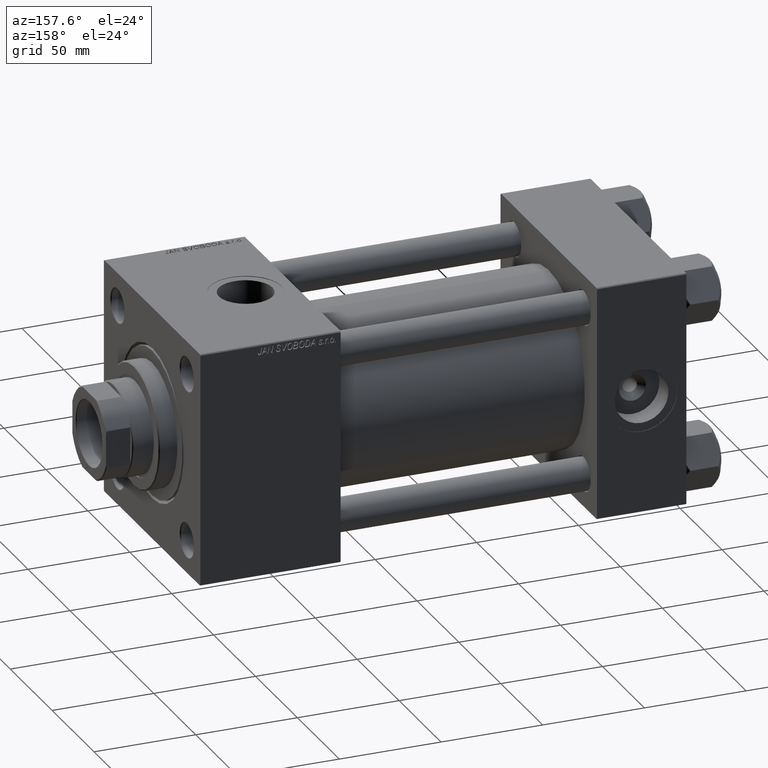
[diagram: clean part render]
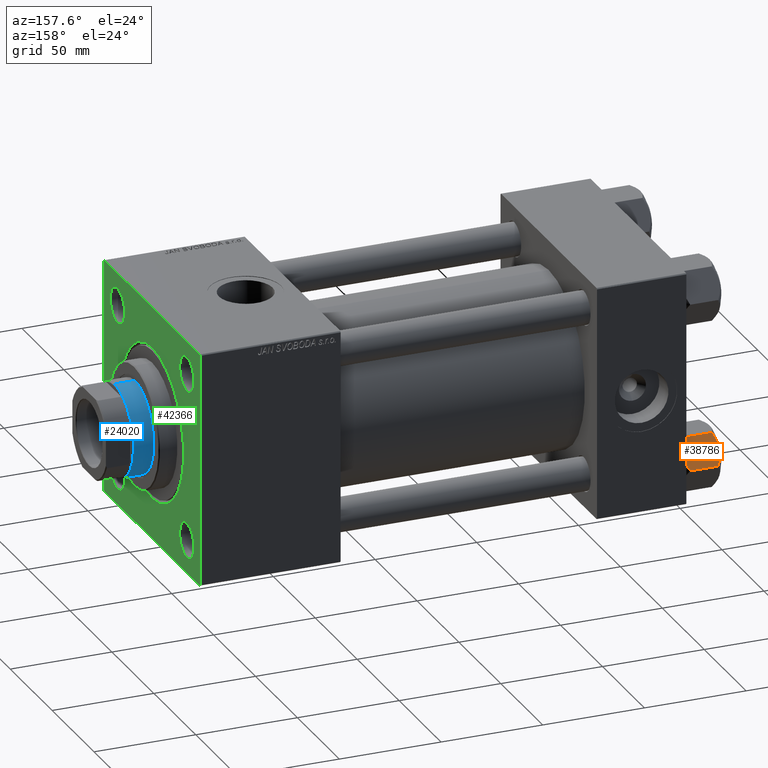
[diagram: same view with three faces highlighted in distinct colors, each labeled with its STEP entity id]
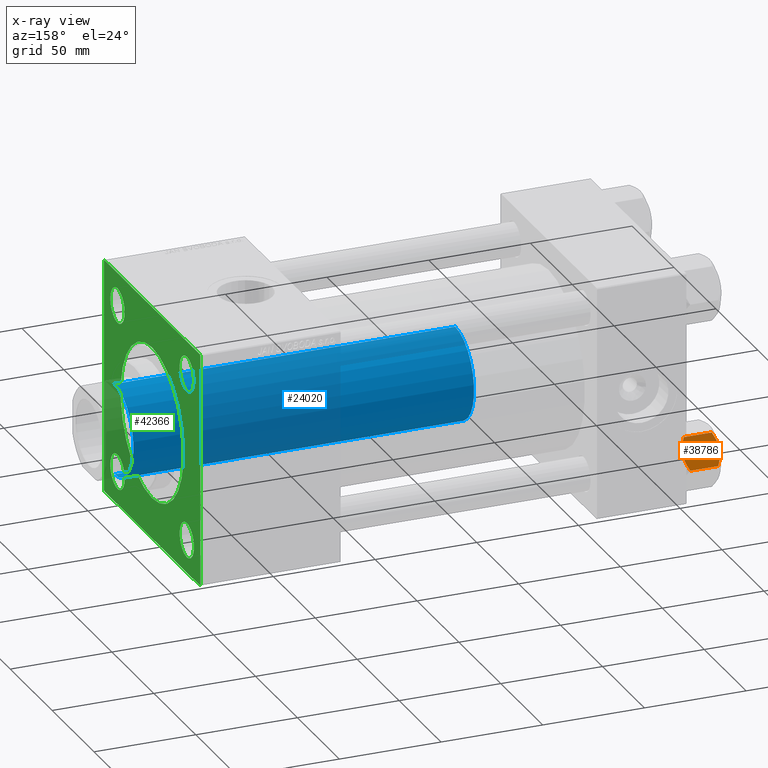
[diagram: x-ray of the same camera — body ghosted, the three highlighted faces saturated]
A machine part, auxiliary view with three faces highlighted in distinct colors.
The next image is the same camera in x-ray (body ghosted, the three faces saturated) — at least one of them is partly hidden behind the body in this view.
Their STEP definitions:

[orange] entity #38786 — the highlighted planar face has unit normal (-0, -0.866, -0.5).
#41 = CARTESIAN_POINT ( 'NONE',  ( 15.52647173767732980, 0.1619957022864996210, -2.000000000000000000 ) ) ;
#497 = CARTESIAN_POINT ( 'NONE',  ( 7.810000000000001386, 13.52731680711293905, -16.00000000000000000 ) ) ;
#923 = FACE_OUTER_BOUND ( 'NONE', #21668, .T. ) ;
#998 = CARTESIAN_POINT ( 'NONE',  ( 15.62000000000000455, -3.536926823623210771E-15, -16.00000000000000000 ) ) ;
#1245 = B_SPLINE_CURVE_WITH_KNOTS ( 'NONE', 3,
 ( #41, #31519, #46658, #12562, #28183, #27422, #4638, #46908 ),
 .UNSPECIFIED., .F., .F.,
 ( 4, 2, 2, 4 ),
 ( 4.472842641998349527E-07, 0.003945636373369321333, 0.005918230917921882620, 0.007890825462474443039 ),
 .UNSPECIFIED. ) ;
#1349 = CARTESIAN_POINT ( 'NONE',  ( 9.114548888011791306, 11.26777185211903110, -17.08577173959729478 ) ) ;
#1800 = DIRECTION ( 'NONE',  ( -0.4999999999999998890, 0.8660254037844387076, 0.000000000000000000 ) ) ;
#2306 = CARTESIAN_POINT ( 'NONE',  ( 7.810000000000001386, 13.52731680711293905, -1.999999999999998224 ) ) ;
#2450 = VECTOR ( 'NONE', #29340, 1000.000000000000000 ) ;
#3002 = ORIENTED_EDGE ( 'NONE', *, *, #30639, .F. ) ;
#3066 = B_SPLINE_CURVE_WITH_KNOTS ( 'NONE', 3,
 ( #47213, #7748, #1349, #35914, #20792, #9531, #28990, #13372 ),
 .UNSPECIFIED., .F., .F.,
 ( 4, 2, 2, 4 ),
 ( 4.472842641823326580E-07, 0.003945636373369297047, 0.005918230917921854864, 0.007890825462474411814 ),
 .UNSPECIFIED. ) ;
#3908 = CARTESIAN_POINT ( 'NONE',  ( 13.02784502466562699, 4.489744118371585380, -17.80281335400753306 ) ) ;
#4638 = CARTESIAN_POINT ( 'NONE',  ( 12.04818928091285812, 6.186557640478061337, 4.387630666777275756E-15 ) ) ;
#5076 = EDGE_CURVE ( 'NONE', #31264, #12380, #3066, .T. ) ;
#5878 = CARTESIAN_POINT ( 'NONE',  ( 11.71500000000000696, 6.763658403556468635, 0.000000000000000000 ) ) ;
#5882 = AXIS2_PLACEMENT_3D ( 'NONE', #8592, #24469, #8339 ) ;
#6131 = CARTESIAN_POINT ( 'NONE',  ( 11.05297796109638142, 7.910314210667880985, 4.223306275009939913E-15 ) ) ;
#6387 = CARTESIAN_POINT ( 'NONE',  ( 8.202637790192646605, 12.84724820552771085, -1.706311779141445495 ) ) ;
#7171 = CARTESIAN_POINT ( 'NONE',  ( 11.71500000000000696, 6.763658403556468635, 0.000000000000000000 ) ) ;
#7489 = CARTESIAN_POINT ( 'NONE',  ( 13.99051971937273997, 2.822342635978011938, -17.26828031537188934 ) ) ;
#7748 = CARTESIAN_POINT ( 'NONE',  ( 8.502393313253762130, 12.32805640973647421, -16.58801072835992585 ) ) ;
#8339 = DIRECTION ( 'NONE',  ( 0.4999999999999998890, -0.8660254037844387076, 0.000000000000000000 ) ) ;
#8592 = CARTESIAN_POINT ( 'NONE',  ( 7.810000000000001386, 13.52731680711293905, -18.00000000000000000 ) ) ;
#8609 = VECTOR ( 'NONE', #46858, 1000.000000000000000 ) ;
#8719 = EDGE_CURVE ( 'NONE', #27029, #19784, #9624, .T. ) ;
#9531 = CARTESIAN_POINT ( 'NONE',  ( 11.04378428799595468, 7.926238119586001218, -17.94910618364698607 ) ) ;
#9624 = LINE ( 'NONE', #44201, #2450 ) ;
#10254 = ORIENTED_EDGE ( 'NONE', *, *, #30222, .F. ) ;
#10481 = CARTESIAN_POINT ( 'NONE',  ( 8.506059550806616798, 12.32170630002230638, -1.434462921875002905 ) ) ;
#10640 = VERTEX_POINT ( 'NONE', #19392 ) ;
#11095 = CARTESIAN_POINT ( 'NONE',  ( 11.71500000000000163, 6.763658403556465082, -18.00000000000000000 ) ) ;
#11343 = CARTESIAN_POINT ( 'NONE',  ( 12.37702203890362540, 5.617002596445055396, -17.99999999999999289 ) ) ;
#11924 = CARTESIAN_POINT ( 'NONE',  ( 7.903528262322677023, 13.36532110482643176, -2.000000000000000000 ) ) ;
#12380 = VERTEX_POINT ( 'NONE', #16820 ) ;
#12562 = CARTESIAN_POINT ( 'NONE',  ( 13.36540581434588049, 3.905071680002321521, -0.3836066851120565335 ) ) ;
#12600 = CARTESIAN_POINT ( 'NONE',  ( 7.810000000000001386, 13.52731680711293905, -1.999999999999998224 ) ) ;
#12602 = B_SPLINE_CURVE_WITH_KNOTS ( 'NONE', 3,
 ( #11095, #11343, #3908, #7489, #15425, #22610, #46444, #23104 ),
 .UNSPECIFIED., .F., .F.,
 ( 4, 2, 2, 4 ),
 ( 0.007890825462474411814, 0.01181022244528552242, 0.01376992093669107686, 0.01572961942809663130 ),
 .UNSPECIFIED. ) ;
#12762 = ORIENTED_EDGE ( 'NONE', *, *, #8719, .F. ) ;
#12772 = LINE ( 'NONE', #497, #42941 ) ;
#12889 = ORIENTED_EDGE ( 'NONE', *, *, #46136, .F. ) ;
#13372 = CARTESIAN_POINT ( 'NONE',  ( 11.71500000000000163, 6.763658403556465082, -18.00000000000000000 ) ) ;
#15425 = CARTESIAN_POINT ( 'NONE',  ( 14.30591678195076177, 2.276058899034901550, -17.05261278537718539 ) ) ;
#15980 = VECTOR ( 'NONE', #1800, 1000.000000000000000 ) ;
#16097 = DIRECTION ( 'NONE',  ( 0.4999999999999998890, -0.8660254037844387076, 0.000000000000000000 ) ) ;
#16820 = CARTESIAN_POINT ( 'NONE',  ( 11.71500000000000163, 6.763658403556465082, -18.00000000000000000 ) ) ;
#17641 = CARTESIAN_POINT ( 'NONE',  ( 9.439480280627261521, 10.70497417113493022, -0.7317196846281139866 ) ) ;
#19392 = CARTESIAN_POINT ( 'NONE',  ( 15.52647173767732980, 0.1619957022864996210, -2.000000000000000000 ) ) ;
#19784 = VERTEX_POINT ( 'NONE', #44995 ) ;
#20017 = CARTESIAN_POINT ( 'NONE',  ( 7.810000000000001386, 13.52731680711293905, -16.00000000000000000 ) ) ;
#20279 = EDGE_CURVE ( 'NONE', #19784, #10640, #40771, .T. ) ;
#20792 = CARTESIAN_POINT ( 'NONE',  ( 10.38662926516872709, 9.064464007571846338, -17.75691532989869970 ) ) ;
#21234 = CARTESIAN_POINT ( 'NONE',  ( 7.810000000000001386, 13.52731680711293905, -16.00000000000000000 ) ) ;
#21668 = EDGE_LOOP ( 'NONE', ( #10254, #42383, #49604, #3002, #48248, #35322, #12762, #37784, #12889, #49838 ) ) ;
#21733 = DIRECTION ( 'NONE',  ( 0.4999999999999998890, -0.8660254037844387076, 0.000000000000000000 ) ) ;
#21993 = CARTESIAN_POINT ( 'NONE',  ( 10.40215497533437272, 9.037572688741351001, -0.1971866459924537240 ) ) ;
#22010 = EDGE_CURVE ( 'NONE', #10640, #27622, #1245, .T. ) ;
#22610 = CARTESIAN_POINT ( 'NONE',  ( 14.92394044919337937, 1.205610507090638217, -16.56553707812499354 ) ) ;
#23021 = LINE ( 'NONE', #47370, #8609 ) ;
#23104 = CARTESIAN_POINT ( 'NONE',  ( 15.52647173767732447, 0.1619957022865091689, -16.00000000000000000 ) ) ;
#23917 = CARTESIAN_POINT ( 'NONE',  ( 15.52647173767732447, 0.1619957022865091689, -16.00000000000000000 ) ) ;
#24469 = DIRECTION ( 'NONE',  ( -0.8660254037844387076, -0.4999999999999998890, 0.000000000000000000 ) ) ;
#25834 = LINE ( 'NONE', #21234, #32503 ) ;
#26878 = EDGE_CURVE ( 'NONE', #41154, #34990, #23021, .T. ) ;
#27029 = VERTEX_POINT ( 'NONE', #998 ) ;
#27192 = VERTEX_POINT ( 'NONE', #23917 ) ;
#27422 = CARTESIAN_POINT ( 'NONE',  ( 12.38621571200405924, 5.601078687526930722, -0.05089381635301206547 ) ) ;
#27622 = VERTEX_POINT ( 'NONE', #7171 ) ;
#27813 = PLANE ( 'NONE',  #5882 ) ;
#28082 = EDGE_CURVE ( 'NONE', #48235, #34990, #33282, .T. ) ;
#28183 = CARTESIAN_POINT ( 'NONE',  ( 13.04337073483128506, 4.462852799541082938, -0.2430846701012950306 ) ) ;
#28990 = CARTESIAN_POINT ( 'NONE',  ( 11.38181071908715225, 7.340759166634867938, -17.99999999999999645 ) ) ;
#29239 = DIRECTION ( 'NONE',  ( -0.4999999999999998890, 0.8660254037844387076, 0.000000000000000000 ) ) ;
#29340 = DIRECTION ( 'NONE',  ( -0.000000000000000000, -0.000000000000000000, 1.000000000000000000 ) ) ;
#29437 = CARTESIAN_POINT ( 'NONE',  ( 9.124083218049243271, 11.25125790807804194, -0.9473872146228123903 ) ) ;
#30222 = EDGE_CURVE ( 'NONE', #41154, #31264, #12772, .T. ) ;
#30639 = EDGE_CURVE ( 'NONE', #27622, #48235, #42751, .T. ) ;
#31264 = VERTEX_POINT ( 'NONE', #47404 ) ;
#31519 = CARTESIAN_POINT ( 'NONE',  ( 14.92760668674625002, 1.199260397376446408, -1.411989271640064825 ) ) ;
#32503 = VECTOR ( 'NONE', #21733, 1000.000000000000000 ) ;
#32716 = CARTESIAN_POINT ( 'NONE',  ( 7.810000000000001386, 13.52731680711293905, -1.999999999999998224 ) ) ;
#33282 = LINE ( 'NONE', #2306, #15980 ) ;
#34990 = VERTEX_POINT ( 'NONE', #32716 ) ;
#35322 = ORIENTED_EDGE ( 'NONE', *, *, #20279, .F. ) ;
#35914 = CARTESIAN_POINT ( 'NONE',  ( 10.06459418565413344, 9.622245127110607754, -17.61639331488794014 ) ) ;
#36815 = EDGE_CURVE ( 'NONE', #27192, #27029, #25834, .T. ) ;
#37784 = ORIENTED_EDGE ( 'NONE', *, *, #36815, .F. ) ;
#38786 = ADVANCED_FACE ( 'NONE', ( #923 ), #27813, .F. ) ;
#40771 = LINE ( 'NONE', #12600, #50083 ) ;
#41154 = VERTEX_POINT ( 'NONE', #20017 ) ;
#42383 = ORIENTED_EDGE ( 'NONE', *, *, #26878, .T. ) ;
#42751 = B_SPLINE_CURVE_WITH_KNOTS ( 'NONE', 3,
 ( #5878, #6131, #21993, #17641, #29437, #10481, #6387, #48915 ),
 .UNSPECIFIED., .F., .F.,
 ( 4, 2, 2, 4 ),
 ( 0.007890825462474443039, 0.01181022244528556059, 0.01376992093669111850, 0.01572961942809667640 ),
 .UNSPECIFIED. ) ;
#42941 = VECTOR ( 'NONE', #16097, 1000.000000000000000 ) ;
#44201 = CARTESIAN_POINT ( 'NONE',  ( 15.62000000000000455, -3.536926823623210771E-15, -18.00000000000000000 ) ) ;
#44995 = CARTESIAN_POINT ( 'NONE',  ( 15.62000000000000455, -3.536926823623210771E-15, -1.999999999999998224 ) ) ;
#46136 = EDGE_CURVE ( 'NONE', #12380, #27192, #12602, .T. ) ;
#46444 = CARTESIAN_POINT ( 'NONE',  ( 15.22736220980735844, 0.6800686015852310806, -16.29368822085855584 ) ) ;
#46658 = CARTESIAN_POINT ( 'NONE',  ( 14.31545111198821552, 2.259544954993890187, -0.9142282604026924497 ) ) ;
#46858 = DIRECTION ( 'NONE',  ( -0.000000000000000000, -0.000000000000000000, 1.000000000000000000 ) ) ;
#46908 = CARTESIAN_POINT ( 'NONE',  ( 11.71500000000000696, 6.763658403556468635, 0.000000000000000000 ) ) ;
#47213 = CARTESIAN_POINT ( 'NONE',  ( 7.903528262322682352, 13.36532110482642111, -16.00000000000000000 ) ) ;
#47370 = CARTESIAN_POINT ( 'NONE',  ( 7.810000000000001386, 13.52731680711293905, -18.00000000000000000 ) ) ;
#47404 = CARTESIAN_POINT ( 'NONE',  ( 7.903528262322682352, 13.36532110482642111, -16.00000000000000000 ) ) ;
#48235 = VERTEX_POINT ( 'NONE', #11924 ) ;
#48248 = ORIENTED_EDGE ( 'NONE', *, *, #22010, .F. ) ;
#48915 = CARTESIAN_POINT ( 'NONE',  ( 7.903528262322677023, 13.36532110482643176, -2.000000000000000000 ) ) ;
#49604 = ORIENTED_EDGE ( 'NONE', *, *, #28082, .F. ) ;
#49838 = ORIENTED_EDGE ( 'NONE', *, *, #5076, .F. ) ;
#50083 = VECTOR ( 'NONE', #29239, 1000.000000000000000 ) ;

[blue] entity #24020 — the highlighted cylindrical surface (partial cylindrical patch) has radius 22.5 mm, axis along (-1, 0, 0).
#30 = CARTESIAN_POINT ( 'NONE',  ( 22.50000000000000355, 2.755455298081544383E-15, 46.00000000000000000 ) ) ;
#1324 = EDGE_CURVE ( 'NONE', #32965, #21248, #26718, .T. ) ;
#1907 = DIRECTION ( 'NONE',  ( 0.000000000000000000, 0.000000000000000000, -1.000000000000000000 ) ) ;
#2006 = ORIENTED_EDGE ( 'NONE', *, *, #47125, .T. ) ;
#2320 = ORIENTED_EDGE ( 'NONE', *, *, #1324, .T. ) ;
#2580 = ORIENTED_EDGE ( 'NONE', *, *, #4147, .T. ) ;
#2909 = CARTESIAN_POINT ( 'NONE',  ( 0.000000000000000000, 0.000000000000000000, 213.5000000000001990 ) ) ;
#3537 = DIRECTION ( 'NONE',  ( 1.000000000000000000, 0.000000000000000000, 0.000000000000000000 ) ) ;
#4030 = FACE_OUTER_BOUND ( 'NONE', #19049, .T. ) ;
#4147 = EDGE_CURVE ( 'NONE', #21383, #44168, #11292, .T. ) ;
#5161 = LINE ( 'NONE', #20768, #22539 ) ;
#5628 = DIRECTION ( 'NONE',  ( -0.000000000000000000, -0.000000000000000000, -1.000000000000000000 ) ) ;
#7104 = CARTESIAN_POINT ( 'NONE',  ( -22.50000000000000355, 0.000000000000000000, 213.5000000000001990 ) ) ;
#11035 = VECTOR ( 'NONE', #5628, 1000.000000000000000 ) ;
#11292 = CIRCLE ( 'NONE', #12096, 22.50000000000000355 ) ;
#12096 = AXIS2_PLACEMENT_3D ( 'NONE', #2909, #1907, #29795 ) ;
#12550 = CARTESIAN_POINT ( 'NONE',  ( 22.50000000000000355, 2.755455298081544383E-15, 213.5000000000001990 ) ) ;
#17709 = AXIS2_PLACEMENT_3D ( 'NONE', #22488, #18643, #3537 ) ;
#18643 = DIRECTION ( 'NONE',  ( 0.000000000000000000, 0.000000000000000000, 1.000000000000000000 ) ) ;
#19049 = EDGE_LOOP ( 'NONE', ( #41466, #2580, #2006, #2320 ) ) ;
#19643 = DIRECTION ( 'NONE',  ( -1.000000000000000000, 0.000000000000000000, 0.000000000000000000 ) ) ;
#20151 = DIRECTION ( 'NONE',  ( -0.000000000000000000, -0.000000000000000000, -1.000000000000000000 ) ) ;
#20768 = CARTESIAN_POINT ( 'NONE',  ( -22.50000000000000355, 0.000000000000000000, 214.0000000000000284 ) ) ;
#21248 = VERTEX_POINT ( 'NONE', #30 ) ;
#21383 = VERTEX_POINT ( 'NONE', #12550 ) ;
#22488 = CARTESIAN_POINT ( 'NONE',  ( 0.000000000000000000, 0.000000000000000000, 46.00000000000000000 ) ) ;
#22539 = VECTOR ( 'NONE', #34768, 1000.000000000000000 ) ;
#24020 = ADVANCED_FACE ( 'NONE', ( #4030 ), #43214, .T. ) ;
#24875 = AXIS2_PLACEMENT_3D ( 'NONE', #42701, #20151, #19643 ) ;
#25342 = LINE ( 'NONE', #36859, #11035 ) ;
#26718 = CIRCLE ( 'NONE', #17709, 22.50000000000000355 ) ;
#29795 = DIRECTION ( 'NONE',  ( 1.000000000000000000, 0.000000000000000000, 0.000000000000000000 ) ) ;
#32965 = VERTEX_POINT ( 'NONE', #46477 ) ;
#34768 = DIRECTION ( 'NONE',  ( -0.000000000000000000, -0.000000000000000000, -1.000000000000000000 ) ) ;
#36859 = CARTESIAN_POINT ( 'NONE',  ( 22.50000000000000355, 2.755455298081544383E-15, 214.0000000000000284 ) ) ;
#41466 = ORIENTED_EDGE ( 'NONE', *, *, #46626, .F. ) ;
#42701 = CARTESIAN_POINT ( 'NONE',  ( 0.000000000000000000, 0.000000000000000000, 214.0000000000000284 ) ) ;
#43214 = CYLINDRICAL_SURFACE ( 'NONE', #24875, 22.50000000000000355 ) ;
#44168 = VERTEX_POINT ( 'NONE', #7104 ) ;
#46477 = CARTESIAN_POINT ( 'NONE',  ( -22.50000000000000355, 0.000000000000000000, 46.00000000000000000 ) ) ;
#46626 = EDGE_CURVE ( 'NONE', #21383, #21248, #25342, .T. ) ;
#47125 = EDGE_CURVE ( 'NONE', #44168, #32965, #5161, .T. ) ;

[green] entity #42366 — the highlighted planar face has unit normal (-1, 0, 0).
#122 = ORIENTED_EDGE ( 'NONE', *, *, #39525, .T. ) ;
#851 = FACE_BOUND ( 'NONE', #49310, .T. ) ;
#1345 = DIRECTION ( 'NONE',  ( -1.000000000000000000, 0.000000000000000000, 0.000000000000000000 ) ) ;
#1509 = EDGE_CURVE ( 'NONE', #41936, #29276, #4673, .T. ) ;
#1628 = EDGE_CURVE ( 'NONE', #39286, #46862, #11350, .T. ) ;
#1669 = EDGE_CURVE ( 'NONE', #15896, #11502, #50458, .T. ) ;
#1739 = CARTESIAN_POINT ( 'NONE',  ( 239.0000000000000000, -41.35000000000000142, -41.34999999999999432 ) ) ;
#2243 = CARTESIAN_POINT ( 'NONE',  ( 239.0000000000000000, -41.35000000000000142, 41.35000000000000853 ) ) ;
#2400 = CIRCLE ( 'NONE', #11392, 8.499999999999923617 ) ;
#3659 = DIRECTION ( 'NONE',  ( 0.000000000000000000, -1.000000000000000000, -1.206764157201257045E-16 ) ) ;
#3789 = AXIS2_PLACEMENT_3D ( 'NONE', #17267, #13441, #32646 ) ;
#3855 = EDGE_CURVE ( 'NONE', #20400, #42304, #25268, .T. ) ;
#4219 = DIRECTION ( 'NONE',  ( -1.000000000000000000, 0.000000000000000000, 0.000000000000000000 ) ) ;
#4673 = CIRCLE ( 'NONE', #37355, 8.500000000000090594 ) ;
#4699 = FACE_BOUND ( 'NONE', #10511, .T. ) ;
#5197 = DIRECTION ( 'NONE',  ( -1.000000000000000000, 0.000000000000000000, 0.000000000000000000 ) ) ;
#5304 = CARTESIAN_POINT ( 'NONE',  ( 239.0000000000000000, 56.99999999999997158, 57.50000000000002132 ) ) ;
#5668 = LINE ( 'NONE', #17421, #30484 ) ;
#5804 = DIRECTION ( 'NONE',  ( 0.000000000000000000, -0.7071067811865672237, 0.7071067811865279218 ) ) ;
#6052 = AXIS2_PLACEMENT_3D ( 'NONE', #23671, #4219, #35457 ) ;
#6642 = EDGE_LOOP ( 'NONE', ( #29902, #26546 ) ) ;
#6861 = AXIS2_PLACEMENT_3D ( 'NONE', #22022, #29965, #14595 ) ;
#7108 = AXIS2_PLACEMENT_3D ( 'NONE', #29443, #41487, #41732 ) ;
#7159 = EDGE_CURVE ( 'NONE', #11502, #15896, #2400, .T. ) ;
#7191 = CARTESIAN_POINT ( 'NONE',  ( 239.0000000000000000, -57.50000000000000711, 57.00000000000003553 ) ) ;
#7261 = CARTESIAN_POINT ( 'NONE',  ( 239.0000000000000000, -57.50000000000001421, -57.00000000000000711 ) ) ;
#7515 = CARTESIAN_POINT ( 'NONE',  ( 239.0000000000000000, 56.99999999999997158, 57.50000000000002132 ) ) ;
#7525 = DIRECTION ( 'NONE',  ( 0.000000000000000000, 0.000000000000000000, 1.000000000000000000 ) ) ;
#7645 = ORIENTED_EDGE ( 'NONE', *, *, #49439, .T. ) ;
#7681 = CIRCLE ( 'NONE', #6052, 37.50000000000000711 ) ;
#8136 = EDGE_CURVE ( 'NONE', #42304, #17035, #16473, .T. ) ;
#9025 = CARTESIAN_POINT ( 'NONE',  ( 239.0000000000000000, 0.000000000000000000, 0.000000000000000000 ) ) ;
#9279 = DIRECTION ( 'NONE',  ( 0.000000000000000000, 0.000000000000000000, 1.000000000000000000 ) ) ;
#9793 = ORIENTED_EDGE ( 'NONE', *, *, #1669, .T. ) ;
#9990 = VERTEX_POINT ( 'NONE', #35391 ) ;
#10511 = EDGE_LOOP ( 'NONE', ( #26072, #9793 ) ) ;
#10721 = DIRECTION ( 'NONE',  ( 0.000000000000000000, 0.000000000000000000, 1.000000000000000000 ) ) ;
#10944 = ORIENTED_EDGE ( 'NONE', *, *, #41218, .T. ) ;
#11144 = CIRCLE ( 'NONE', #3789, 37.50000000000000711 ) ;
#11350 = LINE ( 'NONE', #26970, #45553 ) ;
#11392 = AXIS2_PLACEMENT_3D ( 'NONE', #23400, #31337, #7525 ) ;
#11502 = VERTEX_POINT ( 'NONE', #16558 ) ;
#12331 = ORIENTED_EDGE ( 'NONE', *, *, #28015, .F. ) ;
#12829 = AXIS2_PLACEMENT_3D ( 'NONE', #32067, #1345, #27725 ) ;
#13257 = DIRECTION ( 'NONE',  ( 0.000000000000000000, 0.000000000000000000, 1.000000000000000000 ) ) ;
#13441 = DIRECTION ( 'NONE',  ( -1.000000000000000000, 0.000000000000000000, 0.000000000000000000 ) ) ;
#13682 = DIRECTION ( 'NONE',  ( 0.000000000000000000, 0.000000000000000000, 1.000000000000000000 ) ) ;
#13944 = DIRECTION ( 'NONE',  ( 0.000000000000000000, 0.000000000000000000, -1.000000000000000000 ) ) ;
#14595 = DIRECTION ( 'NONE',  ( 0.000000000000000000, 0.000000000000000000, 1.000000000000000000 ) ) ;
#15802 = CARTESIAN_POINT ( 'NONE',  ( 239.0000000000000000, -41.35000000000000142, -49.85000000000000853 ) ) ;
#15856 = EDGE_CURVE ( 'NONE', #43434, #32982, #41778, .T. ) ;
#15896 = VERTEX_POINT ( 'NONE', #18641 ) ;
#16473 = LINE ( 'NONE', #47490, #18763 ) ;
#16558 = CARTESIAN_POINT ( 'NONE',  ( 239.0000000000000000, 41.34999999999999432, 32.85000000000007248 ) ) ;
#17035 = VERTEX_POINT ( 'NONE', #49603 ) ;
#17267 = CARTESIAN_POINT ( 'NONE',  ( 239.0000000000000000, 0.000000000000000000, 0.000000000000000000 ) ) ;
#17421 = CARTESIAN_POINT ( 'NONE',  ( 239.0000000000000000, 57.50000000000000000, -56.99999999999996447 ) ) ;
#18641 = CARTESIAN_POINT ( 'NONE',  ( 239.0000000000000000, 41.34999999999999432, 49.84999999999992326 ) ) ;
#18763 = VECTOR ( 'NONE', #44389, 1000.000000000000000 ) ;
#18847 = AXIS2_PLACEMENT_3D ( 'NONE', #37866, #18896, #10721 ) ;
#18896 = DIRECTION ( 'NONE',  ( -1.000000000000000000, 0.000000000000000000, 0.000000000000000000 ) ) ;
#18913 = LINE ( 'NONE', #34539, #37059 ) ;
#19253 = ORIENTED_EDGE ( 'NONE', *, *, #33923, .T. ) ;
#19274 = CIRCLE ( 'NONE', #47132, 8.500000000000090594 ) ;
#20306 = FACE_OUTER_BOUND ( 'NONE', #47767, .T. ) ;
#20400 = VERTEX_POINT ( 'NONE', #47147 ) ;
#21069 = FACE_BOUND ( 'NONE', #40306, .T. ) ;
#21111 = CARTESIAN_POINT ( 'NONE',  ( 239.0000000000000000, -57.00000000000001421, -57.50000000000000711 ) ) ;
#21908 = ORIENTED_EDGE ( 'NONE', *, *, #1509, .T. ) ;
#22022 = CARTESIAN_POINT ( 'NONE',  ( 239.0000000000000000, 41.34999999999999432, -41.34999999999999432 ) ) ;
#22766 = ORIENTED_EDGE ( 'NONE', *, *, #8136, .T. ) ;
#23141 = CARTESIAN_POINT ( 'NONE',  ( 239.0000000000000000, 41.34999999999999432, -49.85000000000000853 ) ) ;
#23249 = ORIENTED_EDGE ( 'NONE', *, *, #31723, .T. ) ;
#23400 = CARTESIAN_POINT ( 'NONE',  ( 239.0000000000000000, 41.34999999999999432, 41.34999999999999432 ) ) ;
#23419 = ORIENTED_EDGE ( 'NONE', *, *, #47747, .T. ) ;
#23671 = CARTESIAN_POINT ( 'NONE',  ( 239.0000000000000000, 0.000000000000000000, 0.000000000000000000 ) ) ;
#24147 = VECTOR ( 'NONE', #49969, 1000.000000000000000 ) ;
#24204 = EDGE_CURVE ( 'NONE', #9990, #32272, #7681, .T. ) ;
#24799 = ORIENTED_EDGE ( 'NONE', *, *, #3855, .T. ) ;
#25183 = VECTOR ( 'NONE', #5804, 1000.000000000000000 ) ;
#25268 = LINE ( 'NONE', #5304, #25183 ) ;
#25404 = VERTEX_POINT ( 'NONE', #28310 ) ;
#25663 = ORIENTED_EDGE ( 'NONE', *, *, #24204, .T. ) ;
#26072 = ORIENTED_EDGE ( 'NONE', *, *, #7159, .T. ) ;
#26211 = DIRECTION ( 'NONE',  ( -1.000000000000000000, 0.000000000000000000, 0.000000000000000000 ) ) ;
#26364 = ORIENTED_EDGE ( 'NONE', *, *, #1628, .F. ) ;
#26505 = CARTESIAN_POINT ( 'NONE',  ( 239.0000000000000000, 41.34999999999999432, -32.84999999999998721 ) ) ;
#26546 = ORIENTED_EDGE ( 'NONE', *, *, #15856, .T. ) ;
#26970 = CARTESIAN_POINT ( 'NONE',  ( 239.0000000000000000, 57.50000000000000000, -57.49999999999999289 ) ) ;
#27150 = LINE ( 'NONE', #7191, #24147 ) ;
#27725 = DIRECTION ( 'NONE',  ( 0.000000000000000000, 0.000000000000000000, 1.000000000000000000 ) ) ;
#28015 = EDGE_CURVE ( 'NONE', #20400, #25404, #33403, .T. ) ;
#28310 = CARTESIAN_POINT ( 'NONE',  ( 239.0000000000000000, 57.50000000000000000, -56.99999999999994316 ) ) ;
#28329 = LINE ( 'NONE', #47115, #30446 ) ;
#28525 = ORIENTED_EDGE ( 'NONE', *, *, #42141, .T. ) ;
#28619 = DIRECTION ( 'NONE',  ( 0.000000000000000000, 0.000000000000000000, 1.000000000000000000 ) ) ;
#28877 = DIRECTION ( 'NONE',  ( -1.000000000000000000, 0.000000000000000000, 0.000000000000000000 ) ) ;
#29276 = VERTEX_POINT ( 'NONE', #47796 ) ;
#29443 = CARTESIAN_POINT ( 'NONE',  ( 239.0000000000000000, -41.35000000000000142, -41.34999999999999432 ) ) ;
#29547 = CARTESIAN_POINT ( 'NONE',  ( 239.0000000000000000, -41.35000000000000142, 41.35000000000000853 ) ) ;
#29902 = ORIENTED_EDGE ( 'NONE', *, *, #43693, .T. ) ;
#29965 = DIRECTION ( 'NONE',  ( -1.000000000000000000, 0.000000000000000000, 0.000000000000000000 ) ) ;
#30446 = VECTOR ( 'NONE', #46856, 1000.000000000000000 ) ;
#30484 = VECTOR ( 'NONE', #48950, 1000.000000000000000 ) ;
#30527 = CARTESIAN_POINT ( 'NONE',  ( 239.0000000000000000, 57.00000000000000000, -57.49999999999999289 ) ) ;
#30895 = VERTEX_POINT ( 'NONE', #7261 ) ;
#31337 = DIRECTION ( 'NONE',  ( -1.000000000000000000, 0.000000000000000000, 0.000000000000000000 ) ) ;
#31723 = EDGE_CURVE ( 'NONE', #37075, #37908, #45468, .T. ) ;
#32067 = CARTESIAN_POINT ( 'NONE',  ( 239.0000000000000000, 41.34999999999999432, 41.34999999999999432 ) ) ;
#32272 = VERTEX_POINT ( 'NONE', #33793 ) ;
#32646 = DIRECTION ( 'NONE',  ( 0.000000000000000000, 0.000000000000000000, 1.000000000000000000 ) ) ;
#32836 = FACE_BOUND ( 'NONE', #6642, .T. ) ;
#32982 = VERTEX_POINT ( 'NONE', #23141 ) ;
#33403 = LINE ( 'NONE', #49039, #47925 ) ;
#33793 = CARTESIAN_POINT ( 'NONE',  ( 239.0000000000000000, 4.592425496802575156E-15, 37.50000000000000711 ) ) ;
#33923 = EDGE_CURVE ( 'NONE', #37908, #37075, #49631, .T. ) ;
#34539 = CARTESIAN_POINT ( 'NONE',  ( 239.0000000000000000, -57.00000000000004263, -57.50000000000000711 ) ) ;
#35391 = CARTESIAN_POINT ( 'NONE',  ( 239.0000000000000000, 0.000000000000000000, -37.50000000000000711 ) ) ;
#35457 = DIRECTION ( 'NONE',  ( 0.000000000000000000, 0.000000000000000000, 1.000000000000000000 ) ) ;
#35650 = AXIS2_PLACEMENT_3D ( 'NONE', #1739, #28877, #13257 ) ;
#35926 = PLANE ( 'NONE',  #41169 ) ;
#37059 = VECTOR ( 'NONE', #50178, 1000.000000000000114 ) ;
#37075 = VERTEX_POINT ( 'NONE', #15802 ) ;
#37355 = AXIS2_PLACEMENT_3D ( 'NONE', #29547, #26211, #13682 ) ;
#37635 = ORIENTED_EDGE ( 'NONE', *, *, #49091, .T. ) ;
#37837 = VERTEX_POINT ( 'NONE', #38940 ) ;
#37866 = CARTESIAN_POINT ( 'NONE',  ( 239.0000000000000000, 41.34999999999999432, -41.34999999999999432 ) ) ;
#37908 = VERTEX_POINT ( 'NONE', #40394 ) ;
#38940 = CARTESIAN_POINT ( 'NONE',  ( 239.0000000000000000, -57.50000000000000711, 57.00000000000003553 ) ) ;
#39286 = VERTEX_POINT ( 'NONE', #30527 ) ;
#39525 = EDGE_CURVE ( 'NONE', #37837, #30895, #28329, .T. ) ;
#40306 = EDGE_LOOP ( 'NONE', ( #37635, #21908 ) ) ;
#40394 = CARTESIAN_POINT ( 'NONE',  ( 239.0000000000000000, -41.35000000000000142, -32.84999999999998721 ) ) ;
#40425 = CIRCLE ( 'NONE', #6861, 8.500000000000007105 ) ;
#40914 = DIRECTION ( 'NONE',  ( -1.000000000000000000, 0.000000000000000000, 0.000000000000000000 ) ) ;
#41169 = AXIS2_PLACEMENT_3D ( 'NONE', #9025, #5197, #9279 ) ;
#41218 = EDGE_CURVE ( 'NONE', #39286, #25404, #5668, .T. ) ;
#41487 = DIRECTION ( 'NONE',  ( -1.000000000000000000, 0.000000000000000000, 0.000000000000000000 ) ) ;
#41492 = CARTESIAN_POINT ( 'NONE',  ( 239.0000000000000000, -41.35000000000000142, 49.85000000000010090 ) ) ;
#41566 = EDGE_LOOP ( 'NONE', ( #25663, #7645 ) ) ;
#41732 = DIRECTION ( 'NONE',  ( 0.000000000000000000, 0.000000000000000000, 1.000000000000000000 ) ) ;
#41778 = CIRCLE ( 'NONE', #18847, 8.500000000000007105 ) ;
#41936 = VERTEX_POINT ( 'NONE', #41492 ) ;
#42141 = EDGE_CURVE ( 'NONE', #30895, #46862, #18913, .T. ) ;
#42304 = VERTEX_POINT ( 'NONE', #7515 ) ;
#42366 = ADVANCED_FACE ( 'NONE', ( #4699, #21069, #851, #32836, #48477, #20306 ), #35926, .F. ) ;
#43434 = VERTEX_POINT ( 'NONE', #26505 ) ;
#43693 = EDGE_CURVE ( 'NONE', #32982, #43434, #40425, .T. ) ;
#44389 = DIRECTION ( 'NONE',  ( 0.000000000000000000, -1.000000000000000000, -1.206764157201257045E-16 ) ) ;
#45468 = CIRCLE ( 'NONE', #35650, 8.500000000000007105 ) ;
#45553 = VECTOR ( 'NONE', #3659, 1000.000000000000000 ) ;
#46856 = DIRECTION ( 'NONE',  ( 0.000000000000000000, -6.033820786006285224E-17, -1.000000000000000000 ) ) ;
#46862 = VERTEX_POINT ( 'NONE', #21111 ) ;
#47115 = CARTESIAN_POINT ( 'NONE',  ( 239.0000000000000000, -57.50000000000000711, 57.50000000000000711 ) ) ;
#47132 = AXIS2_PLACEMENT_3D ( 'NONE', #2243, #40914, #28619 ) ;
#47147 = CARTESIAN_POINT ( 'NONE',  ( 239.0000000000000000, 57.50000000000000000, 57.00000000000002132 ) ) ;
#47490 = CARTESIAN_POINT ( 'NONE',  ( 239.0000000000000000, 57.50000000000000000, 57.50000000000002132 ) ) ;
#47747 = EDGE_CURVE ( 'NONE', #17035, #37837, #27150, .T. ) ;
#47767 = EDGE_LOOP ( 'NONE', ( #122, #28525, #26364, #10944, #12331, #24799, #22766, #23419 ) ) ;
#47796 = CARTESIAN_POINT ( 'NONE',  ( 239.0000000000000000, -41.35000000000000142, 32.84999999999992326 ) ) ;
#47925 = VECTOR ( 'NONE', #13944, 1000.000000000000000 ) ;
#48477 = FACE_BOUND ( 'NONE', #41566, .T. ) ;
#48950 = DIRECTION ( 'NONE',  ( -0.000000000000000000, 0.7071067811865279218, 0.7071067811865672237 ) ) ;
#49039 = CARTESIAN_POINT ( 'NONE',  ( 239.0000000000000000, 57.50000000000000000, 57.50000000000002132 ) ) ;
#49091 = EDGE_CURVE ( 'NONE', #29276, #41936, #19274, .T. ) ;
#49310 = EDGE_LOOP ( 'NONE', ( #23249, #19253 ) ) ;
#49439 = EDGE_CURVE ( 'NONE', #32272, #9990, #11144, .T. ) ;
#49603 = CARTESIAN_POINT ( 'NONE',  ( 239.0000000000000000, -57.00000000000001421, 57.50000000000000711 ) ) ;
#49631 = CIRCLE ( 'NONE', #7108, 8.500000000000007105 ) ;
#49969 = DIRECTION ( 'NONE',  ( -0.000000000000000000, -0.7071067811865426878, -0.7071067811865524577 ) ) ;
#50178 = DIRECTION ( 'NONE',  ( 0.000000000000000000, 0.7071067811865474617, -0.7071067811865474617 ) ) ;
#50458 = CIRCLE ( 'NONE', #12829, 8.499999999999923617 ) ;